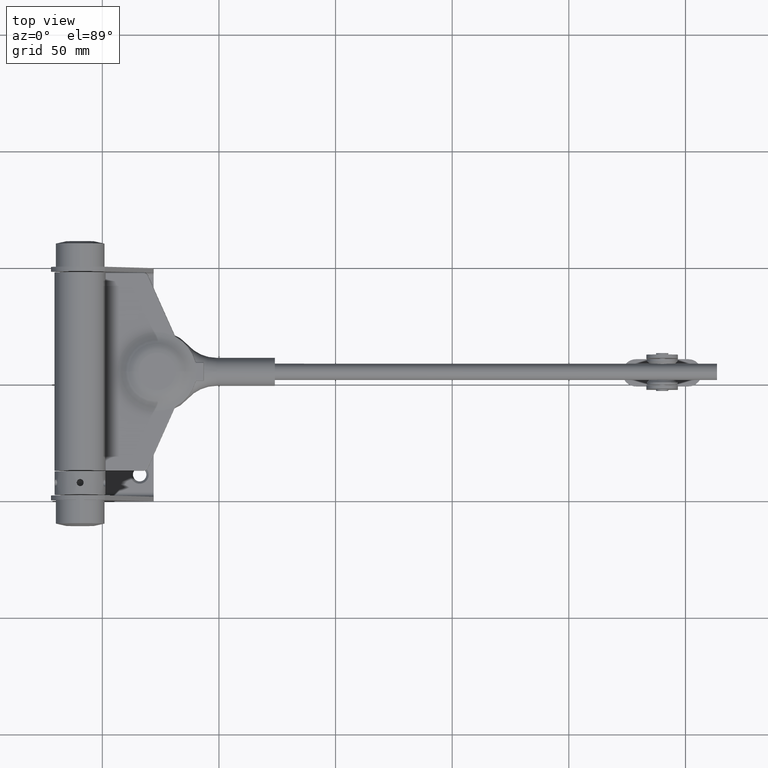
[diagram: clean part render]
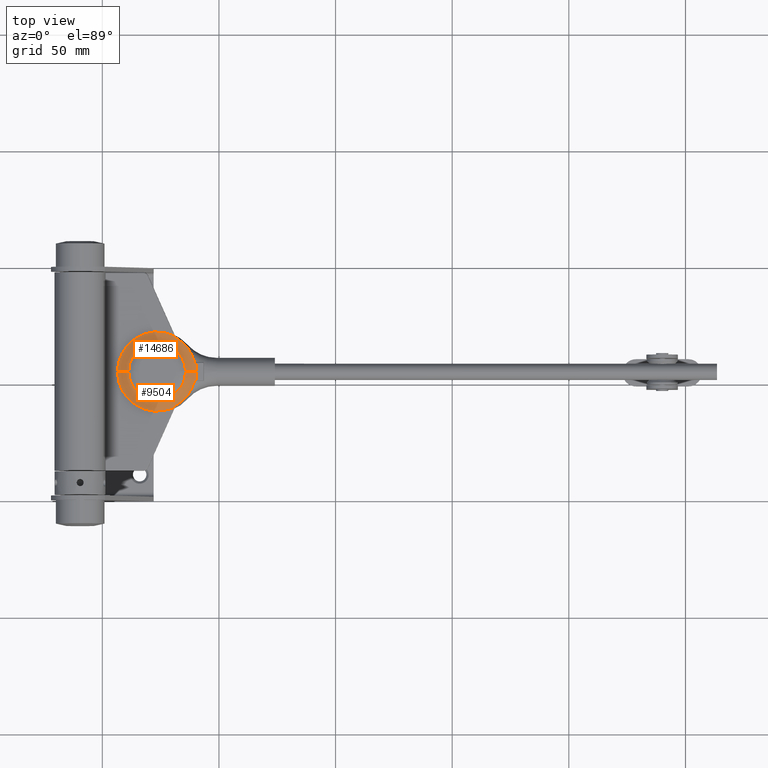
[diagram: same view with one multi-face feature highlighted, each face labeled with its STEP entity id]
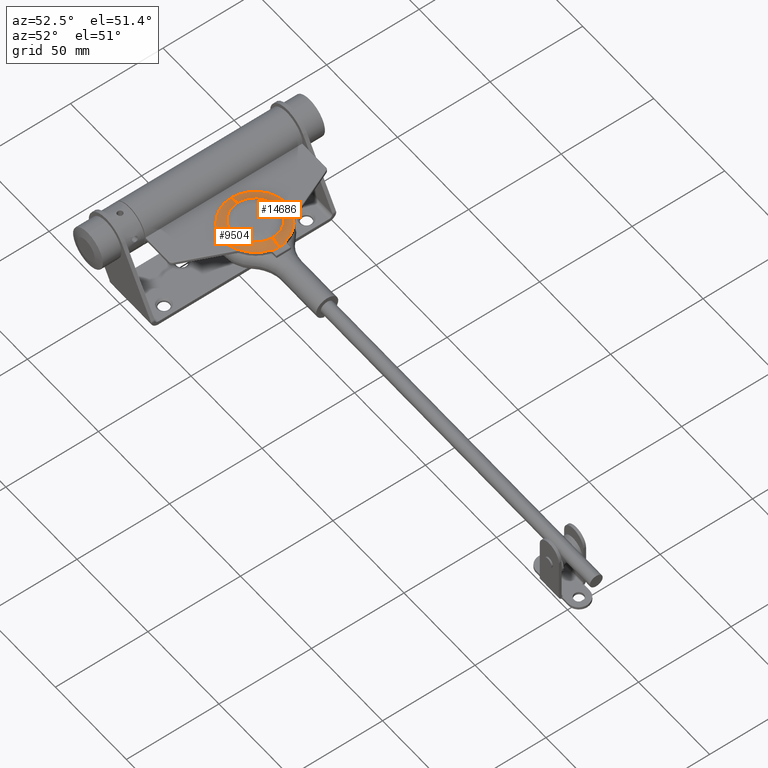
[diagram: same view with one multi-face feature highlighted, each face labeled with its STEP entity id]
A machine part, top view. The highlighted faces form ONE feature: a constant-radius fillet chain: 2 tangent blend faces with common blend radius 8 mm. The faces share edges in the B-rep.
A second angle (auxiliary view) of the same feature is appended — it is thin or edge-on in the first view.
Their STEP definitions:
[1] entity #9504 (Torus):
#104 = EDGE_CURVE ( 'NONE', #10975, #4630, #2421, .T. ) ;
#264 = CARTESIAN_POINT ( 'NONE',  ( -1.013852824246050055, -4.168783464700014818, 48.99530662854498786 ) ) ;
#273 = DIRECTION ( 'NONE',  ( 0.000000000000000000, 0.000000000000000000, -1.000000000000000000 ) ) ;
#339 = CARTESIAN_POINT ( 'NONE',  ( -1.011195128086109118, -14.68086724102055030, 40.68611319205719212 ) ) ;
#678 = DIRECTION ( 'NONE',  ( 0.000000000000000000, 0.000000000000000000, -1.000000000000000000 ) ) ;
#2063 = AXIS2_PLACEMENT_3D ( 'NONE', #20433, #8061, #273 ) ;
#2103 = CARTESIAN_POINT ( 'NONE',  ( -1.013852824246051609, -14.40741519184097719, 41.10233551373350736 ) ) ;
#2137 = AXIS2_PLACEMENT_3D ( 'NONE', #8832, #6787, #10864 ) ;
#2301 = CARTESIAN_POINT ( 'NONE',  ( -1.003871690769734037, -3.695569333477974894, 49.33158341340956810 ) ) ;
#2421 = CIRCLE ( 'NONE', #14339, 12.19999999999999574 ) ;
#2453 = CIRCLE ( 'NONE', #8071, 8.000000000000035527 ) ;
#3360 = DIRECTION ( 'NONE',  ( 0.000000000000000000, 0.000000000000000000, -1.000000000000000000 ) ) ;
#3920 = DIRECTION ( 'NONE',  ( -1.000000000000000000, 0.000000000000000000, 0.000000000000000000 ) ) ;
#4186 = FACE_OUTER_BOUND ( 'NONE', #21095, .T. ) ;
#4193 = VERTEX_POINT ( 'NONE', #5081 ) ;
#4340 = CARTESIAN_POINT ( 'NONE',  ( -1.009271961804345974, -3.874397582213115587, 49.15488180832853260 ) ) ;
#4630 = VERTEX_POINT ( 'NONE', #13924 ) ;
#4968 = VERTEX_POINT ( 'NONE', #11429 ) ;
#5081 = CARTESIAN_POINT ( 'NONE',  ( -1.013852824246050055, -4.250420168067231330, 48.97358387094407561 ) ) ;
#6240 = CARTESIAN_POINT ( 'NONE',  ( -0.9999999999999997780, -15.23856819745253333, 40.18553077751774083 ) ) ;
#6758 = CARTESIAN_POINT ( 'NONE',  ( -1.013852824246050721, -14.53052181846720003, 40.88342970815874367 ) ) ;
#6787 = DIRECTION ( 'NONE',  ( 1.000000000000000000, -0.000000000000000000, -0.000000000000000000 ) ) ;
#6883 = VERTEX_POINT ( 'NONE', #6918 ) ;
#6918 = CARTESIAN_POINT ( 'NONE',  ( -1.000000000000000000, -3.541316839253966897, 49.62705852049653288 ) ) ;
#7282 = CARTESIAN_POINT ( 'NONE',  ( -0.9999999999999995559, 2.081899558550502646E-15, 50.00000000000000711 ) ) ;
#7542 = CIRCLE ( 'NONE', #13293, 16.52941176470579165 ) ;
#8061 = DIRECTION ( 'NONE',  ( 1.000000000000000000, -0.000000000000000000, -0.000000000000000000 ) ) ;
#8071 = AXIS2_PLACEMENT_3D ( 'NONE', #23331, #23163, #13012 ) ;
#8138 = CIRCLE ( 'NONE', #2137, 17.00000000000000711 ) ;
#8208 = CARTESIAN_POINT ( 'NONE',  ( -0.9999999999999991118, -15.46086696712055719, 40.06835147859814583 ) ) ;
#8832 = CARTESIAN_POINT ( 'NONE',  ( -0.9999999999999991118, 0.000000000000000000, 32.99999999999999289 ) ) ;
#8890 = CARTESIAN_POINT ( 'NONE',  ( -1.013852824246051609, -14.40741519184097719, 41.10233551373350736 ) ) ;
#9504 = ADVANCED_FACE ( 'NONE', ( #4186 ), #13353, .F. ) ;
#9856 = EDGE_CURVE ( 'NONE', #25236, #18089, #10427, .T. ) ;
#10405 = CARTESIAN_POINT ( 'NONE',  ( -1.004208916081742897, -15.03658189026467440, 40.33504947363494608 ) ) ;
#10427 = B_SPLINE_CURVE_WITH_KNOTS ( 'NONE', 3,
 ( #8208, #6240, #10405, #339, #6758, #8890 ),
 .UNSPECIFIED., .F., .F.,
 ( 4, 2, 4 ),
 ( 0.000000000000000000, 0.0007474981209224097582, 0.001494996241844819516 ),
 .UNSPECIFIED. ) ;
#10430 = CARTESIAN_POINT ( 'NONE',  ( -1.013852824246050055, -4.250420168067231330, 48.97358387094407561 ) ) ;
#10864 = DIRECTION ( 'NONE',  ( 0.000000000000000000, 0.000000000000000000, -1.000000000000000000 ) ) ;
#10975 = VERTEX_POINT ( 'NONE', #14315 ) ;
#11396 = CARTESIAN_POINT ( 'NONE',  ( -2.600000000000003197, 0.000000000000000000, 32.99999999999999289 ) ) ;
#11429 = CARTESIAN_POINT ( 'NONE',  ( -0.9999999999999991118, 0.000000000000000000, 15.99999999999998224 ) ) ;
#12206 = CARTESIAN_POINT ( 'NONE',  ( -0.9999999999999995559, -3.567471755631983044, 49.54660690757746977 ) ) ;
#12477 = CARTESIAN_POINT ( 'NONE',  ( -1.000000000000000000, -3.541316839253966897, 49.62705852049653288 ) ) ;
#12781 = DIRECTION ( 'NONE',  ( -0.000000000000000000, -1.000000000000000000, -0.000000000000000000 ) ) ;
#13012 = DIRECTION ( 'NONE',  ( 0.000000000000000000, 1.224646799147352714E-16, 1.000000000000000000 ) ) ;
#13123 = CARTESIAN_POINT ( 'NONE',  ( -9.000000000000031974, 0.000000000000000000, 15.99999999999997868 ) ) ;
#13293 = AXIS2_PLACEMENT_3D ( 'NONE', #14069, #3920, #15910 ) ;
#13353 = TOROIDAL_SURFACE ( 'NONE', #2063, 17.00000000000001421, 8.000000000000033751 ) ;
#13861 = EDGE_CURVE ( 'NONE', #18089, #4193, #7542, .T. ) ;
#13920 = ORIENTED_EDGE ( 'NONE', *, *, #15387, .T. ) ;
#13924 = CARTESIAN_POINT ( 'NONE',  ( -2.600000000000003197, 0.000000000000000000, 20.80000000000000071 ) ) ;
#14069 = CARTESIAN_POINT ( 'NONE',  ( -1.013852824244434014, 0.000000000000000000, 32.99999999999999289 ) ) ;
#14074 = B_SPLINE_CURVE_WITH_KNOTS ( 'NONE', 3,
 ( #10430, #264, #24228, #24578, #4340, #14393, #2301, #16428, #12206, #12477 ),
 .UNSPECIFIED., .F., .F.,
 ( 4, 2, 2, 2, 4 ),
 ( 0.000000000000000000, 0.0002534289706895226715, 0.0005068579413790453431, 0.0007602869120685680146, 0.001013715882758090686 ),
 .UNSPECIFIED. ) ;
#14315 = CARTESIAN_POINT ( 'NONE',  ( -2.600000000000003197, 1.787984326755136555E-15, 45.19999999999998863 ) ) ;
#14339 = AXIS2_PLACEMENT_3D ( 'NONE', #11396, #19332, #3360 ) ;
#14393 = CARTESIAN_POINT ( 'NONE',  ( -1.005760272595515925, -3.751018974044522114, 49.26706340083955382 ) ) ;
#14819 = EDGE_CURVE ( 'NONE', #4968, #4630, #25255, .T. ) ;
#14883 = ORIENTED_EDGE ( 'NONE', *, *, #22440, .T. ) ;
#15387 = EDGE_CURVE ( 'NONE', #21931, #10975, #2453, .T. ) ;
#15784 = AXIS2_PLACEMENT_3D ( 'NONE', #17323, #17414, #21480 ) ;
#15830 = AXIS2_PLACEMENT_3D ( 'NONE', #13123, #12781, #678 ) ;
#15910 = DIRECTION ( 'NONE',  ( 0.000000000000000000, 0.000000000000000000, 1.000000000000000000 ) ) ;
#15985 = EDGE_CURVE ( 'NONE', #25236, #4968, #8138, .T. ) ;
#16428 = CARTESIAN_POINT ( 'NONE',  ( -1.000992291605788065, -3.603870759718182715, 49.47159259021637467 ) ) ;
#17323 = CARTESIAN_POINT ( 'NONE',  ( -1.000000000000000000, 0.000000000000000000, 32.99999999999999289 ) ) ;
#17414 = DIRECTION ( 'NONE',  ( -1.000000000000000000, -0.000000000000000000, -0.000000000000000000 ) ) ;
#18089 = VERTEX_POINT ( 'NONE', #2103 ) ;
#19158 = ORIENTED_EDGE ( 'NONE', *, *, #13861, .T. ) ;
#19168 = CIRCLE ( 'NONE', #15784, 17.00000000000001421 ) ;
#19332 = DIRECTION ( 'NONE',  ( 1.000000000000000000, -0.000000000000000000, -0.000000000000000000 ) ) ;
#19781 = ORIENTED_EDGE ( 'NONE', *, *, #104, .T. ) ;
#20431 = ORIENTED_EDGE ( 'NONE', *, *, #15985, .F. ) ;
#20433 = CARTESIAN_POINT ( 'NONE',  ( -9.000000000000031974, 0.000000000000000000, 32.99999999999999289 ) ) ;
#20824 = ORIENTED_EDGE ( 'NONE', *, *, #25426, .T. ) ;
#21095 = EDGE_LOOP ( 'NONE', ( #14883, #13920, #19781, #21926, #20431, #24659, #19158, #20824 ) ) ;
#21480 = DIRECTION ( 'NONE',  ( 0.000000000000000000, 0.000000000000000000, -1.000000000000000000 ) ) ;
#21926 = ORIENTED_EDGE ( 'NONE', *, *, #14819, .F. ) ;
#21931 = VERTEX_POINT ( 'NONE', #7282 ) ;
#22440 = EDGE_CURVE ( 'NONE', #6883, #21931, #19168, .T. ) ;
#23163 = DIRECTION ( 'NONE',  ( 0.000000000000000000, 1.000000000000000000, -1.224646799147353207E-16 ) ) ;
#23331 = CARTESIAN_POINT ( 'NONE',  ( -9.000000000000031974, 2.081899558550502252E-15, 50.00000000000000711 ) ) ;
#23876 = CARTESIAN_POINT ( 'NONE',  ( -0.9999999999999991118, -15.46086696712055719, 40.06835147859814583 ) ) ;
#24228 = CARTESIAN_POINT ( 'NONE',  ( -1.013212811317153239, -4.091048809072276526, 49.02620527335565725 ) ) ;
#24578 = CARTESIAN_POINT ( 'NONE',  ( -1.010931492056026393, -3.943973211248118727, 49.10574004636385581 ) ) ;
#24659 = ORIENTED_EDGE ( 'NONE', *, *, #9856, .T. ) ;
#25236 = VERTEX_POINT ( 'NONE', #23876 ) ;
#25255 = CIRCLE ( 'NONE', #15830, 8.000000000000033751 ) ;
#25426 = EDGE_CURVE ( 'NONE', #4193, #6883, #14074, .T. ) ;
[2] entity #14686 (Torus):
#678 = DIRECTION ( 'NONE',  ( 0.000000000000000000, 0.000000000000000000, -1.000000000000000000 ) ) ;
#754 = CARTESIAN_POINT ( 'NONE',  ( -1.000000000000000000, 3.541316839253948245, 49.62705852049653998 ) ) ;
#1165 = ORIENTED_EDGE ( 'NONE', *, *, #5620, .T. ) ;
#1521 = VERTEX_POINT ( 'NONE', #24811 ) ;
#1839 = FACE_OUTER_BOUND ( 'NONE', #12717, .T. ) ;
#2268 = CIRCLE ( 'NONE', #13033, 17.00000000000001421 ) ;
#2385 = DIRECTION ( 'NONE',  ( 0.000000000000000000, 0.000000000000000000, -1.000000000000000000 ) ) ;
#2445 = ORIENTED_EDGE ( 'NONE', *, *, #14819, .T. ) ;
#2453 = CIRCLE ( 'NONE', #8071, 8.000000000000035527 ) ;
#2962 = DIRECTION ( 'NONE',  ( 0.000000000000000000, 0.000000000000000000, 1.000000000000000000 ) ) ;
#3035 = VERTEX_POINT ( 'NONE', #3515 ) ;
#3203 = CARTESIAN_POINT ( 'NONE',  ( -1.009274626984992596, 3.874502701020726469, 49.15480144648128658 ) ) ;
#3232 = ORIENTED_EDGE ( 'NONE', *, *, #15387, .F. ) ;
#3515 = CARTESIAN_POINT ( 'NONE',  ( -0.9999999999999991118, 15.46086696712055897, 40.06835147859814583 ) ) ;
#4630 = VERTEX_POINT ( 'NONE', #13924 ) ;
#4892 = CARTESIAN_POINT ( 'NONE',  ( -0.9999999999999981126, 3.567470922839501846, 49.54660946921812581 ) ) ;
#4897 = B_SPLINE_CURVE_WITH_KNOTS ( 'NONE', 3,
 ( #10401, #24555, #8020, #10313, #12366, #6335 ),
 .UNSPECIFIED., .F., .F.,
 ( 4, 2, 4 ),
 ( 0.000000000000000000, 0.0007477126641244255783, 0.001495425328248851157 ),
 .UNSPECIFIED. ) ;
#4968 = VERTEX_POINT ( 'NONE', #11429 ) ;
#5151 = CARTESIAN_POINT ( 'NONE',  ( -1.013852824246051165, 14.40741519184097719, 41.10233551373350736 ) ) ;
#5504 = CARTESIAN_POINT ( 'NONE',  ( -1.000995171047629251, 3.603966654483218957, 49.47142937117622097 ) ) ;
#5620 = EDGE_CURVE ( 'NONE', #21931, #10349, #2268, .T. ) ;
#6085 = CIRCLE ( 'NONE', #14252, 12.19999999999999574 ) ;
#6238 = EDGE_CURVE ( 'NONE', #4968, #3035, #7300, .T. ) ;
#6335 = CARTESIAN_POINT ( 'NONE',  ( -0.9999999999999991118, 15.46086696712055897, 40.06835147859814583 ) ) ;
#7282 = CARTESIAN_POINT ( 'NONE',  ( -0.9999999999999995559, 2.081899558550502646E-15, 50.00000000000000711 ) ) ;
#7300 = CIRCLE ( 'NONE', #18277, 17.00000000000000711 ) ;
#8020 = CARTESIAN_POINT ( 'NONE',  ( -1.011155900955430065, 14.68287193447334005, 40.68370879548940877 ) ) ;
#8071 = AXIS2_PLACEMENT_3D ( 'NONE', #23331, #23163, #13012 ) ;
#9221 = DIRECTION ( 'NONE',  ( 0.000000000000000000, 0.000000000000000000, -1.000000000000000000 ) ) ;
#9380 = CARTESIAN_POINT ( 'NONE',  ( -1.010932428586617915, 3.944004154476978830, 49.10571400989159230 ) ) ;
#9573 = EDGE_CURVE ( 'NONE', #4630, #10975, #6085, .T. ) ;
#10313 = CARTESIAN_POINT ( 'NONE',  ( -1.004158466382500725, 15.03914313302343508, 40.33295312993573134 ) ) ;
#10349 = VERTEX_POINT ( 'NONE', #25248 ) ;
#10401 = CARTESIAN_POINT ( 'NONE',  ( -1.013852824246051165, 14.40741519184097719, 41.10233551373350736 ) ) ;
#10975 = VERTEX_POINT ( 'NONE', #14315 ) ;
#11004 = DIRECTION ( 'NONE',  ( -1.000000000000000000, 0.000000000000000000, 0.000000000000000000 ) ) ;
#11023 = TOROIDAL_SURFACE ( 'NONE', #11273, 17.00000000000001421, 8.000000000000033751 ) ;
#11168 = CARTESIAN_POINT ( 'NONE',  ( -1.000000000000000000, 0.000000000000000000, 32.99999999999999289 ) ) ;
#11251 = CARTESIAN_POINT ( 'NONE',  ( -1.013214695278114030, 4.091199738010979026, 49.02613296945003896 ) ) ;
#11273 = AXIS2_PLACEMENT_3D ( 'NONE', #17981, #24282, #14274 ) ;
#11344 = CIRCLE ( 'NONE', #18355, 16.52941176470579165 ) ;
#11429 = CARTESIAN_POINT ( 'NONE',  ( -0.9999999999999991118, 0.000000000000000000, 15.99999999999998224 ) ) ;
#11597 = CARTESIAN_POINT ( 'NONE',  ( -1.005763394634325181, 3.751117200529114015, 49.26695889671005091 ) ) ;
#12185 = ORIENTED_EDGE ( 'NONE', *, *, #6238, .F. ) ;
#12366 = CARTESIAN_POINT ( 'NONE',  ( -0.9999999999999988898, 15.23851650682025038, 40.18555802495622942 ) ) ;
#12463 = EDGE_CURVE ( 'NONE', #1521, #17041, #11344, .T. ) ;
#12472 = CARTESIAN_POINT ( 'NONE',  ( -0.9999999999999991118, 0.000000000000000000, 32.99999999999999289 ) ) ;
#12561 = DIRECTION ( 'NONE',  ( 1.000000000000000000, -0.000000000000000000, -0.000000000000000000 ) ) ;
#12717 = EDGE_LOOP ( 'NONE', ( #3232, #1165, #17079, #23504, #14169, #12185, #2445, #18732 ) ) ;
#12781 = DIRECTION ( 'NONE',  ( -0.000000000000000000, -1.000000000000000000, -0.000000000000000000 ) ) ;
#13012 = DIRECTION ( 'NONE',  ( 0.000000000000000000, 1.224646799147352714E-16, 1.000000000000000000 ) ) ;
#13033 = AXIS2_PLACEMENT_3D ( 'NONE', #11168, #21319, #9221 ) ;
#13123 = CARTESIAN_POINT ( 'NONE',  ( -9.000000000000031974, 0.000000000000000000, 15.99999999999997868 ) ) ;
#13547 = CARTESIAN_POINT ( 'NONE',  ( -1.003872485515466151, 3.695590443100876143, 49.33156800678178655 ) ) ;
#13608 = EDGE_CURVE ( 'NONE', #10349, #1521, #25875, .T. ) ;
#13924 = CARTESIAN_POINT ( 'NONE',  ( -2.600000000000003197, 0.000000000000000000, 20.80000000000000071 ) ) ;
#14169 = ORIENTED_EDGE ( 'NONE', *, *, #21763, .T. ) ;
#14252 = AXIS2_PLACEMENT_3D ( 'NONE', #22625, #12561, #18631 ) ;
#14274 = DIRECTION ( 'NONE',  ( 0.000000000000000000, 0.000000000000000000, -1.000000000000000000 ) ) ;
#14315 = CARTESIAN_POINT ( 'NONE',  ( -2.600000000000003197, 1.787984326755136555E-15, 45.19999999999998863 ) ) ;
#14686 = ADVANCED_FACE ( 'NONE', ( #1839 ), #11023, .F. ) ;
#14819 = EDGE_CURVE ( 'NONE', #4968, #4630, #25255, .T. ) ;
#15387 = EDGE_CURVE ( 'NONE', #21931, #10975, #2453, .T. ) ;
#15639 = CARTESIAN_POINT ( 'NONE',  ( -1.013852824246052498, 4.168784581348923268, 48.99530633141524305 ) ) ;
#15830 = AXIS2_PLACEMENT_3D ( 'NONE', #13123, #12781, #678 ) ;
#17041 = VERTEX_POINT ( 'NONE', #5151 ) ;
#17079 = ORIENTED_EDGE ( 'NONE', *, *, #13608, .T. ) ;
#17981 = CARTESIAN_POINT ( 'NONE',  ( -9.000000000000031974, 0.000000000000000000, 32.99999999999999289 ) ) ;
#18277 = AXIS2_PLACEMENT_3D ( 'NONE', #12472, #24743, #2385 ) ;
#18355 = AXIS2_PLACEMENT_3D ( 'NONE', #19206, #11004, #2962 ) ;
#18631 = DIRECTION ( 'NONE',  ( 0.000000000000000000, 0.000000000000000000, -1.000000000000000000 ) ) ;
#18732 = ORIENTED_EDGE ( 'NONE', *, *, #9573, .T. ) ;
#19206 = CARTESIAN_POINT ( 'NONE',  ( -1.013852824244265705, 0.000000000000000000, 32.99999999999999289 ) ) ;
#19632 = CARTESIAN_POINT ( 'NONE',  ( -1.013852824246050943, 4.250420168067222448, 48.97358387094408272 ) ) ;
#21319 = DIRECTION ( 'NONE',  ( -1.000000000000000000, -0.000000000000000000, -0.000000000000000000 ) ) ;
#21763 = EDGE_CURVE ( 'NONE', #17041, #3035, #4897, .T. ) ;
#21931 = VERTEX_POINT ( 'NONE', #7282 ) ;
#22625 = CARTESIAN_POINT ( 'NONE',  ( -2.600000000000003197, 0.000000000000000000, 32.99999999999999289 ) ) ;
#23163 = DIRECTION ( 'NONE',  ( 0.000000000000000000, 1.000000000000000000, -1.224646799147353207E-16 ) ) ;
#23331 = CARTESIAN_POINT ( 'NONE',  ( -9.000000000000031974, 2.081899558550502252E-15, 50.00000000000000711 ) ) ;
#23504 = ORIENTED_EDGE ( 'NONE', *, *, #12463, .T. ) ;
#24282 = DIRECTION ( 'NONE',  ( 1.000000000000000000, -0.000000000000000000, -0.000000000000000000 ) ) ;
#24555 = CARTESIAN_POINT ( 'NONE',  ( -1.013852824246051165, 14.53053115882369006, 40.88341309931875145 ) ) ;
#24743 = DIRECTION ( 'NONE',  ( 1.000000000000000000, -0.000000000000000000, -0.000000000000000000 ) ) ;
#24811 = CARTESIAN_POINT ( 'NONE',  ( -1.013852824246050943, 4.250420168067222448, 48.97358387094408272 ) ) ;
#25248 = CARTESIAN_POINT ( 'NONE',  ( -1.000000000000000000, 3.541316839253948245, 49.62705852049653998 ) ) ;
#25255 = CIRCLE ( 'NONE', #15830, 8.000000000000033751 ) ;
#25875 = B_SPLINE_CURVE_WITH_KNOTS ( 'NONE', 3,
 ( #754, #4892, #5504, #13547, #11597, #3203, #9380, #11251, #15639, #19632 ),
 .UNSPECIFIED., .F., .F.,
 ( 4, 2, 2, 2, 4 ),
 ( 7.269816092100958512E-18, 0.0002537770540359272691, 0.0005075541080718472741, 0.0007613311621077672791, 0.001015108216143687393 ),
 .UNSPECIFIED. ) ;